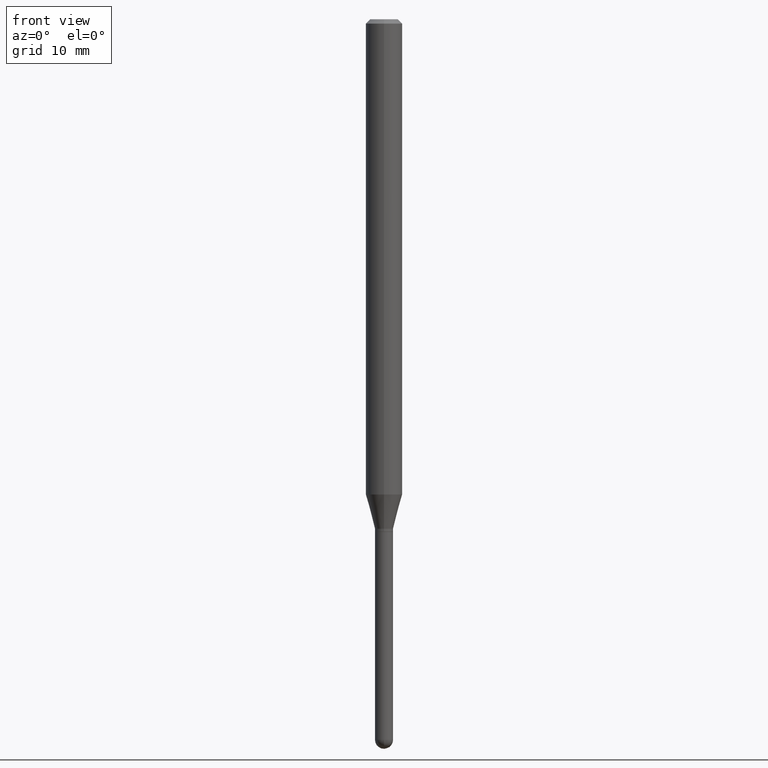
[diagram: clean part render]
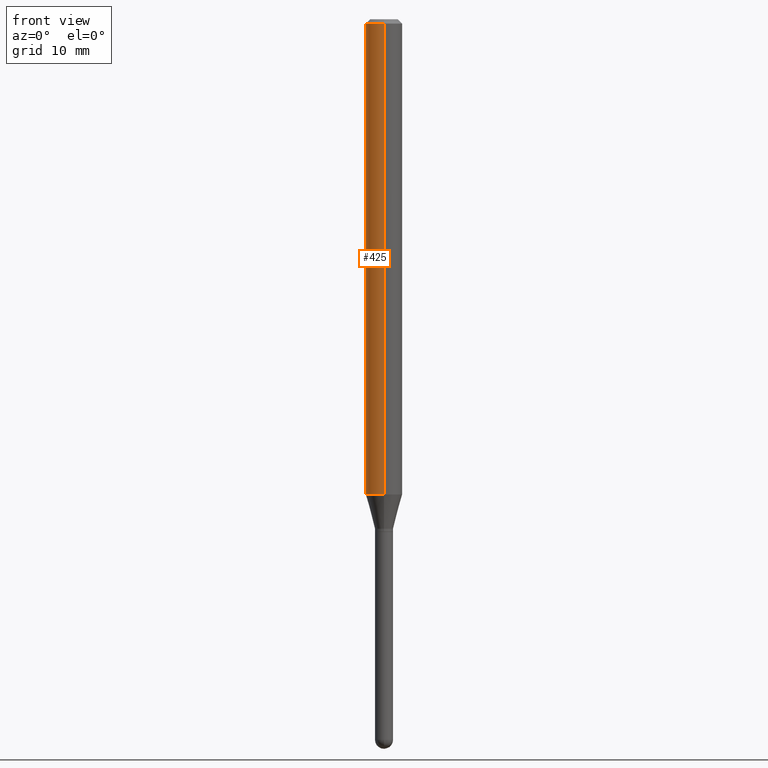
[diagram: same view with one face highlighted and labeled with its STEP entity id]
A machine part, front view. The second image highlights one B-rep face of the part: STEP entity #425.
In plain terms, the highlighted cylindrical surface (edge-blend (fillet) strip) has radius 1.5875 mm, axis along (-0, 0, 1).
Its self-contained STEP definition (entity closure, byte-faithful):
#21 = DIRECTION ( 'NONE',  ( -2.445450411678088822E-29, 3.491507680824188299E-15, 1.000000000000000000 ) ) ;
#28 = LINE ( 'NONE', #345, #503 ) ;
#30 = CARTESIAN_POINT ( 'NONE',  ( 4.440892098501026509E-16, 0.06249999999999995143, -0.01500000000000054588 ) ) ;
#32 = CIRCLE ( 'NONE', #370, 0.06250000000000000000 ) ;
#38 = AXIS2_PLACEMENT_3D ( 'NONE', #291, #480, #97 ) ;
#53 = DIRECTION ( 'NONE',  ( -6.982962677686265922E-15, -1.000000000000000000, 3.483106191921935554E-15 ) ) ;
#81 = CARTESIAN_POINT ( 'NONE',  ( 0.000000000000000000, 0.000000000000000000, 0.000000000000000000 ) ) ;
#92 = EDGE_CURVE ( 'NONE', #405, #216, #319, .T. ) ;
#97 = DIRECTION ( 'NONE',  ( -6.982962677686265922E-15, -1.000000000000000000, 4.370956789862821150E-15 ) ) ;
#108 = ORIENTED_EDGE ( 'NONE', *, *, #483, .F. ) ;
#113 = DIRECTION ( 'NONE',  ( -6.982962677686265922E-15, -1.000000000000000000, 3.491507680824188299E-15 ) ) ;
#118 = ORIENTED_EDGE ( 'NONE', *, *, #92, .T. ) ;
#122 = ORIENTED_EDGE ( 'NONE', *, *, #267, .F. ) ;
#136 = VECTOR ( 'NONE', #473, 39.37007874015748143 ) ;
#148 = CARTESIAN_POINT ( 'NONE',  ( 4.440892098501021578E-16, 0.06249999999999429623, -1.628440399561580598 ) ) ;
#156 = AXIS2_PLACEMENT_3D ( 'NONE', #81, #311, #113 ) ;
#197 = CARTESIAN_POINT ( 'NONE',  ( -4.364351673553520291E-16, -0.06250000000000571765, -1.628440399561579932 ) ) ;
#210 = EDGE_LOOP ( 'NONE', ( #122, #118, #251, #108 ) ) ;
#216 = VERTEX_POINT ( 'NONE', #197 ) ;
#226 = FACE_OUTER_BOUND ( 'NONE', #210, .T. ) ;
#251 = ORIENTED_EDGE ( 'NONE', *, *, #375, .T. ) ;
#267 = EDGE_CURVE ( 'NONE', #405, #400, #318, .T. ) ;
#291 = CARTESIAN_POINT ( 'NONE',  ( 3.982270245501097907E-29, -5.685712162833668296E-15, -1.628440399561580154 ) ) ;
#294 = CARTESIAN_POINT ( 'NONE',  ( -4.364351673553912750E-16, -0.06250000000000005551, -0.01500000000000011047 ) ) ;
#296 = CARTESIAN_POINT ( 'NONE',  ( 3.668175617517213895E-31, -5.237261521236396735E-17, -0.01500000000000032904 ) ) ;
#311 = DIRECTION ( 'NONE',  ( -2.445450411678088822E-29, 3.491507680824188299E-15, 1.000000000000000000 ) ) ;
#318 = LINE ( 'NONE', #393, #136 ) ;
#319 = CIRCLE ( 'NONE', #38, 0.06250000000000000000 ) ;
#345 = CARTESIAN_POINT ( 'NONE',  ( -4.364351673553916201E-16, -0.06250000000000000000, 2.182192300515117687E-16 ) ) ;
#370 = AXIS2_PLACEMENT_3D ( 'NONE', #296, #21, #53 ) ;
#375 = EDGE_CURVE ( 'NONE', #216, #472, #28, .T. ) ;
#393 = CARTESIAN_POINT ( 'NONE',  ( 4.440892098500625669E-16, 0.06250000000000000000, -2.182192300515117687E-16 ) ) ;
#400 = VERTEX_POINT ( 'NONE', #30 ) ;
#405 = VERTEX_POINT ( 'NONE', #148 ) ;
#423 = CYLINDRICAL_SURFACE ( 'NONE', #156, 0.06250000000000000000 ) ;
#425 = ADVANCED_FACE ( 'NONE', ( #226 ), #423, .T. ) ;
#472 = VERTEX_POINT ( 'NONE', #294 ) ;
#473 = DIRECTION ( 'NONE',  ( -2.445450411678088822E-29, 3.491507680824188299E-15, 1.000000000000000000 ) ) ;
#480 = DIRECTION ( 'NONE',  ( -2.445450411678088822E-29, 3.491507680824188299E-15, 1.000000000000000000 ) ) ;
#483 = EDGE_CURVE ( 'NONE', #400, #472, #32, .T. ) ;
#500 = DIRECTION ( 'NONE',  ( -2.445450411678088822E-29, 3.491507680824188299E-15, 1.000000000000000000 ) ) ;
#503 = VECTOR ( 'NONE', #500, 39.37007874015748143 ) ;